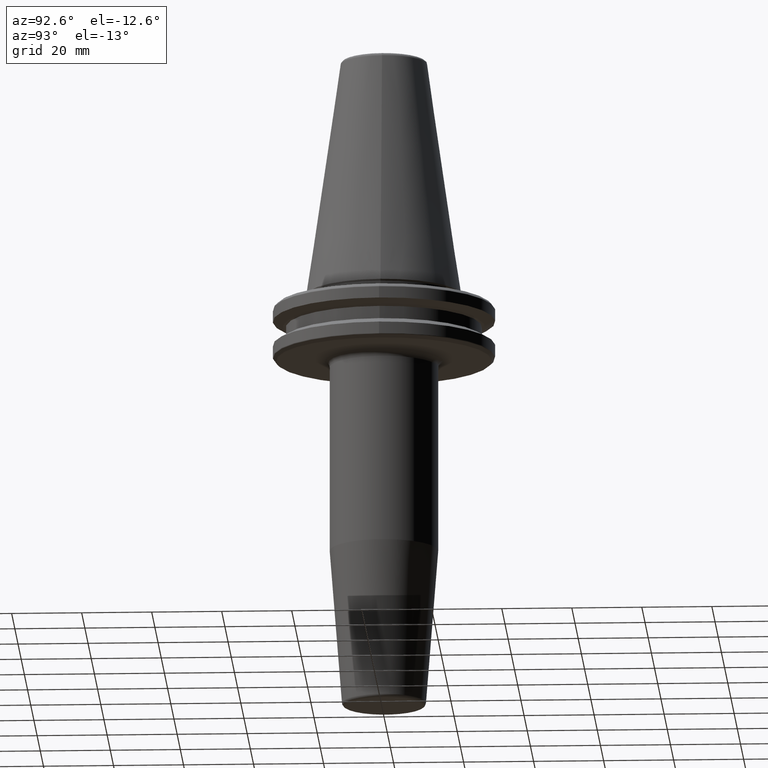
[diagram: clean part render]
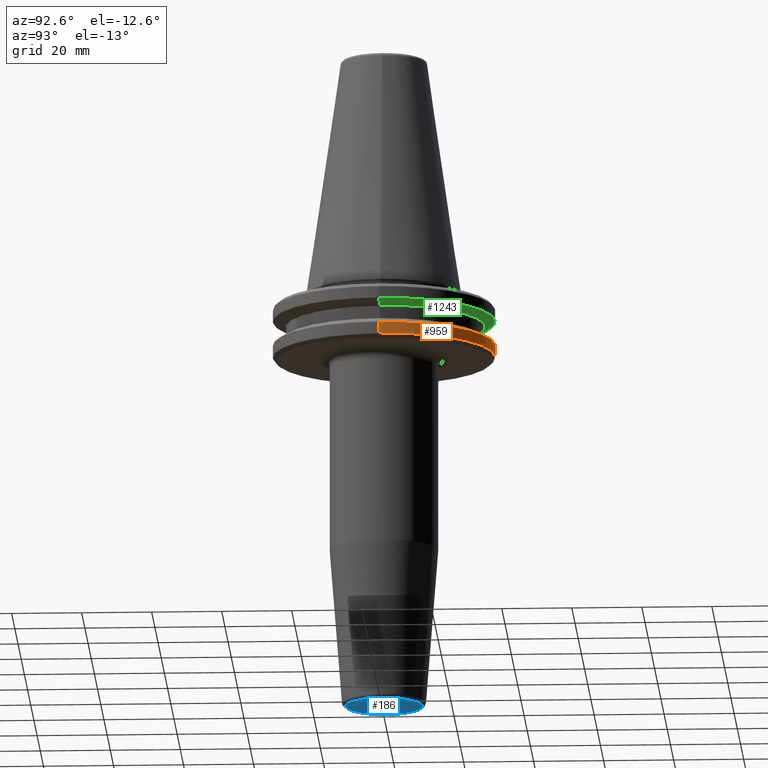
[diagram: same view with three faces highlighted in distinct colors, each labeled with its STEP entity id]
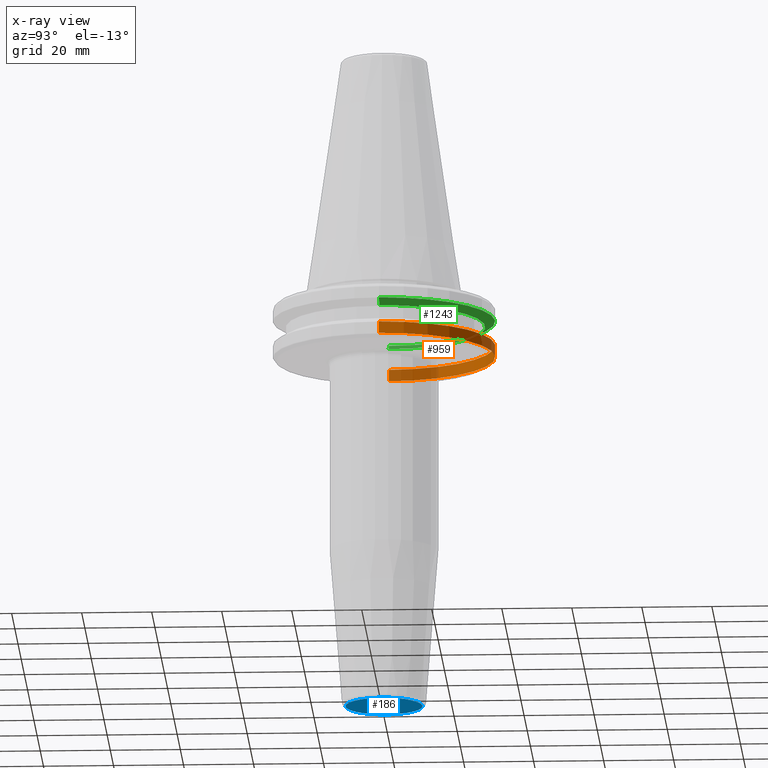
[diagram: x-ray of the same camera — body ghosted, the three highlighted faces saturated]
A machine part, auxiliary view with three faces highlighted in distinct colors.
The next image is the same camera in x-ray (body ghosted, the three faces saturated) — at least one of them is partly hidden behind the body in this view.
Their STEP definitions:

[orange] entity #959 — the highlighted cylindrical surface (partial cylindrical patch) has radius 31.75 mm, axis along (-0, -0, 1).
#11 = DIRECTION ( 'NONE',  ( -0.0000000000000000000, -0.0000000000000000000, 1.000000000000000000 ) ) ;
#56 = CYLINDRICAL_SURFACE ( 'NONE', #292, 31.75000000000000000 ) ;
#105 = CARTESIAN_POINT ( 'NONE',  ( 31.75000000000000000, 0.0000000000000000000, -17.93431457505076300 ) ) ;
#161 = DIRECTION ( 'NONE',  ( 1.000000000000000000, 0.0000000000000000000, 0.0000000000000000000 ) ) ;
#163 = EDGE_CURVE ( 'NONE', #1099, #1174, #1176, .T. ) ;
#192 = ORIENTED_EDGE ( 'NONE', *, *, #948, .F. ) ;
#251 = LINE ( 'NONE', #1078, #1234 ) ;
#262 = CARTESIAN_POINT ( 'NONE',  ( 31.75000000000000000, 0.0000000000000000000, -14.62183664205671200 ) ) ;
#268 = EDGE_LOOP ( 'NONE', ( #399, #903, #192, #363 ) ) ;
#292 = AXIS2_PLACEMENT_3D ( 'NONE', #306, #392, #1080 ) ;
#306 = CARTESIAN_POINT ( 'NONE',  ( 0.0000000000000000000, 0.0000000000000000000, 113.5216080541959500 ) ) ;
#308 = CARTESIAN_POINT ( 'NONE',  ( -31.75000000000000000, 3.888253587292846500E-015, -14.62183664205671200 ) ) ;
#349 = FACE_OUTER_BOUND ( 'NONE', #268, .T. ) ;
#363 = ORIENTED_EDGE ( 'NONE', *, *, #879, .F. ) ;
#392 = DIRECTION ( 'NONE',  ( -0.0000000000000000000, -0.0000000000000000000, 1.000000000000000000 ) ) ;
#399 = ORIENTED_EDGE ( 'NONE', *, *, #163, .T. ) ;
#403 = DIRECTION ( 'NONE',  ( -0.0000000000000000000, -0.0000000000000000000, 1.000000000000000000 ) ) ;
#438 = CIRCLE ( 'NONE', #492, 31.75000000000000000 ) ;
#460 = CARTESIAN_POINT ( 'NONE',  ( 0.0000000000000000000, 0.0000000000000000000, -17.93431457505076300 ) ) ;
#492 = AXIS2_PLACEMENT_3D ( 'NONE', #580, #11, #669 ) ;
#503 = CARTESIAN_POINT ( 'NONE',  ( -31.75000000000000000, 3.888253587292846500E-015, 113.5216080541959500 ) ) ;
#560 = DIRECTION ( 'NONE',  ( -0.0000000000000000000, -0.0000000000000000000, 1.000000000000000000 ) ) ;
#578 = DIRECTION ( 'NONE',  ( -0.0000000000000000000, -0.0000000000000000000, 1.000000000000000000 ) ) ;
#580 = CARTESIAN_POINT ( 'NONE',  ( 0.0000000000000000000, 0.0000000000000000000, -14.62183664205671200 ) ) ;
#628 = VERTEX_POINT ( 'NONE', #262 ) ;
#669 = DIRECTION ( 'NONE',  ( 1.000000000000000000, 0.0000000000000000000, 0.0000000000000000000 ) ) ;
#681 = CARTESIAN_POINT ( 'NONE',  ( -31.75000000000000000, 3.888253587292846500E-015, -17.93431457505076300 ) ) ;
#757 = AXIS2_PLACEMENT_3D ( 'NONE', #460, #560, #161 ) ;
#854 = VECTOR ( 'NONE', #403, 1000.000000000000000 ) ;
#879 = EDGE_CURVE ( 'NONE', #1099, #628, #251, .T. ) ;
#903 = ORIENTED_EDGE ( 'NONE', *, *, #935, .T. ) ;
#935 = EDGE_CURVE ( 'NONE', #1174, #1137, #1124, .T. ) ;
#948 = EDGE_CURVE ( 'NONE', #628, #1137, #438, .T. ) ;
#959 = ADVANCED_FACE ( 'NONE', ( #349 ), #56, .T. ) ;
#1078 = CARTESIAN_POINT ( 'NONE',  ( 31.75000000000000000, 0.0000000000000000000, 113.5216080541959500 ) ) ;
#1080 = DIRECTION ( 'NONE',  ( 1.000000000000000000, 0.0000000000000000000, 0.0000000000000000000 ) ) ;
#1099 = VERTEX_POINT ( 'NONE', #105 ) ;
#1124 = LINE ( 'NONE', #503, #854 ) ;
#1137 = VERTEX_POINT ( 'NONE', #308 ) ;
#1174 = VERTEX_POINT ( 'NONE', #681 ) ;
#1176 = CIRCLE ( 'NONE', #757, 31.75000000000000000 ) ;
#1234 = VECTOR ( 'NONE', #578, 1000.000000000000000 ) ;

[blue] entity #186 — the highlighted planar face has unit normal (-0, 0, -1).
#23 = CARTESIAN_POINT ( 'NONE',  ( 1.408532577888284200E-015, -11.00308266626686700, -120.0000000000000000 ) ) ;
#128 = VERTEX_POINT ( 'NONE', #911 ) ;
#185 = ORIENTED_EDGE ( 'NONE', *, *, #851, .T. ) ;
#186 = ADVANCED_FACE ( 'NONE', ( #1131 ), #465, .T. ) ;
#193 = DIRECTION ( 'NONE',  ( -0.0000000000000000000, 1.946757673717420000E-016, -1.000000000000000000 ) ) ;
#263 = CIRCLE ( 'NONE', #849, 11.00308266626686800 ) ;
#465 = PLANE ( 'NONE',  #839 ) ;
#488 = DIRECTION ( 'NONE',  ( -0.0000000000000000000, 1.946757673717420000E-016, -1.000000000000000000 ) ) ;
#550 = CIRCLE ( 'NONE', #759, 11.00308266626686800 ) ;
#714 = EDGE_CURVE ( 'NONE', #128, #998, #263, .T. ) ;
#759 = AXIS2_PLACEMENT_3D ( 'NONE', #765, #193, #869 ) ;
#765 = CARTESIAN_POINT ( 'NONE',  ( 0.0000000000000000000, 2.395971582958279500E-015, -120.0000000000000000 ) ) ;
#790 = EDGE_LOOP ( 'NONE', ( #814, #185 ) ) ;
#791 = CARTESIAN_POINT ( 'NONE',  ( 0.0000000000000000000, 2.395971582958279500E-015, -120.0000000000000000 ) ) ;
#814 = ORIENTED_EDGE ( 'NONE', *, *, #714, .T. ) ;
#839 = AXIS2_PLACEMENT_3D ( 'NONE', #1240, #859, #958 ) ;
#849 = AXIS2_PLACEMENT_3D ( 'NONE', #791, #488, #1258 ) ;
#851 = EDGE_CURVE ( 'NONE', #998, #128, #550, .T. ) ;
#859 = DIRECTION ( 'NONE',  ( -0.0000000000000000000, 1.946757673717420000E-016, -1.000000000000000000 ) ) ;
#869 = DIRECTION ( 'NONE',  ( 0.0000000000000000000, 1.000000000000000000, 0.0000000000000000000 ) ) ;
#911 = CARTESIAN_POINT ( 'NONE',  ( 0.0000000000000000000, 11.00308266626687000, -120.0000000000000000 ) ) ;
#958 = DIRECTION ( 'NONE',  ( 0.0000000000000000000, 1.000000000000000000, 1.946757673717420000E-016 ) ) ;
#998 = VERTEX_POINT ( 'NONE', #23 ) ;
#1131 = FACE_OUTER_BOUND ( 'NONE', #790, .T. ) ;
#1240 = CARTESIAN_POINT ( 'NONE',  ( 0.0000000000000000000, 11.00308266626687000, -120.0000000000000000 ) ) ;
#1258 = DIRECTION ( 'NONE',  ( 0.0000000000000000000, 1.000000000000000000, 0.0000000000000000000 ) ) ;

[green] entity #1243 — the highlighted conical surface has half-angle 60 deg.
#15 = DIRECTION ( 'NONE',  ( 1.000000000000000000, 0.0000000000000000000, 0.0000000000000000000 ) ) ;
#93 = FACE_OUTER_BOUND ( 'NONE', #656, .T. ) ;
#156 = ORIENTED_EDGE ( 'NONE', *, *, #901, .T. ) ;
#160 = VECTOR ( 'NONE', #929, 1000.000000000000000 ) ;
#187 = CIRCLE ( 'NONE', #749, 31.75000000000000000 ) ;
#228 = DIRECTION ( 'NONE',  ( -0.0000000000000000000, -0.0000000000000000000, 1.000000000000000000 ) ) ;
#255 = VECTOR ( 'NONE', #890, 1000.000000000000000 ) ;
#316 = CARTESIAN_POINT ( 'NONE',  ( 31.75000000000000000, 0.0000000000000000000, -7.578163357943284800 ) ) ;
#323 = CARTESIAN_POINT ( 'NONE',  ( 0.0000000000000000000, 0.0000000000000000000, -7.578163357943284800 ) ) ;
#360 = LINE ( 'NONE', #627, #160 ) ;
#367 = EDGE_CURVE ( 'NONE', #574, #654, #1238, .T. ) ;
#396 = DIRECTION ( 'NONE',  ( -0.0000000000000000000, -0.0000000000000000000, 1.000000000000000000 ) ) ;
#413 = DIRECTION ( 'NONE',  ( 1.000000000000000000, 0.0000000000000000000, 0.0000000000000000000 ) ) ;
#421 = ORIENTED_EDGE ( 'NONE', *, *, #367, .F. ) ;
#482 = AXIS2_PLACEMENT_3D ( 'NONE', #323, #228, #413 ) ;
#489 = CIRCLE ( 'NONE', #646, 28.94089653438084400 ) ;
#574 = VERTEX_POINT ( 'NONE', #582 ) ;
#582 = CARTESIAN_POINT ( 'NONE',  ( 28.94089653438084400, 0.0000000000000000000, -9.200000000000013500 ) ) ;
#583 = DIRECTION ( 'NONE',  ( -0.0000000000000000000, -0.0000000000000000000, 1.000000000000000000 ) ) ;
#627 = CARTESIAN_POINT ( 'NONE',  ( -31.75000000000000000, 3.888253587292846500E-015, -7.578163357943284800 ) ) ;
#646 = AXIS2_PLACEMENT_3D ( 'NONE', #1173, #583, #15 ) ;
#654 = VERTEX_POINT ( 'NONE', #1185 ) ;
#656 = EDGE_LOOP ( 'NONE', ( #156, #702, #870, #421 ) ) ;
#702 = ORIENTED_EDGE ( 'NONE', *, *, #778, .T. ) ;
#743 = EDGE_CURVE ( 'NONE', #654, #1160, #187, .T. ) ;
#749 = AXIS2_PLACEMENT_3D ( 'NONE', #883, #396, #1150 ) ;
#778 = EDGE_CURVE ( 'NONE', #1188, #1160, #360, .T. ) ;
#788 = CARTESIAN_POINT ( 'NONE',  ( -28.94089653438084400, 3.716245608910634800E-015, -9.200000000000013500 ) ) ;
#810 = CONICAL_SURFACE ( 'NONE', #482, 31.75000000000000000, 1.047197551196598500 ) ;
#870 = ORIENTED_EDGE ( 'NONE', *, *, #743, .F. ) ;
#883 = CARTESIAN_POINT ( 'NONE',  ( 0.0000000000000000000, 0.0000000000000000000, -7.578163357943284800 ) ) ;
#890 = DIRECTION ( 'NONE',  ( 0.8660254037844390400, 0.0000000000000000000, 0.4999999999999993300 ) ) ;
#901 = EDGE_CURVE ( 'NONE', #574, #1188, #489, .T. ) ;
#929 = DIRECTION ( 'NONE',  ( -0.8660254037844390400, 1.060575238724907400E-016, 0.4999999999999993300 ) ) ;
#1088 = CARTESIAN_POINT ( 'NONE',  ( -31.75000000000000000, 3.888253587292846500E-015, -7.578163357943284800 ) ) ;
#1150 = DIRECTION ( 'NONE',  ( 1.000000000000000000, 0.0000000000000000000, 0.0000000000000000000 ) ) ;
#1160 = VERTEX_POINT ( 'NONE', #1088 ) ;
#1173 = CARTESIAN_POINT ( 'NONE',  ( 0.0000000000000000000, 0.0000000000000000000, -9.200000000000013500 ) ) ;
#1185 = CARTESIAN_POINT ( 'NONE',  ( 31.75000000000000000, 0.0000000000000000000, -7.578163357943284800 ) ) ;
#1188 = VERTEX_POINT ( 'NONE', #788 ) ;
#1238 = LINE ( 'NONE', #316, #255 ) ;
#1243 = ADVANCED_FACE ( 'NONE', ( #93 ), #810, .T. ) ;